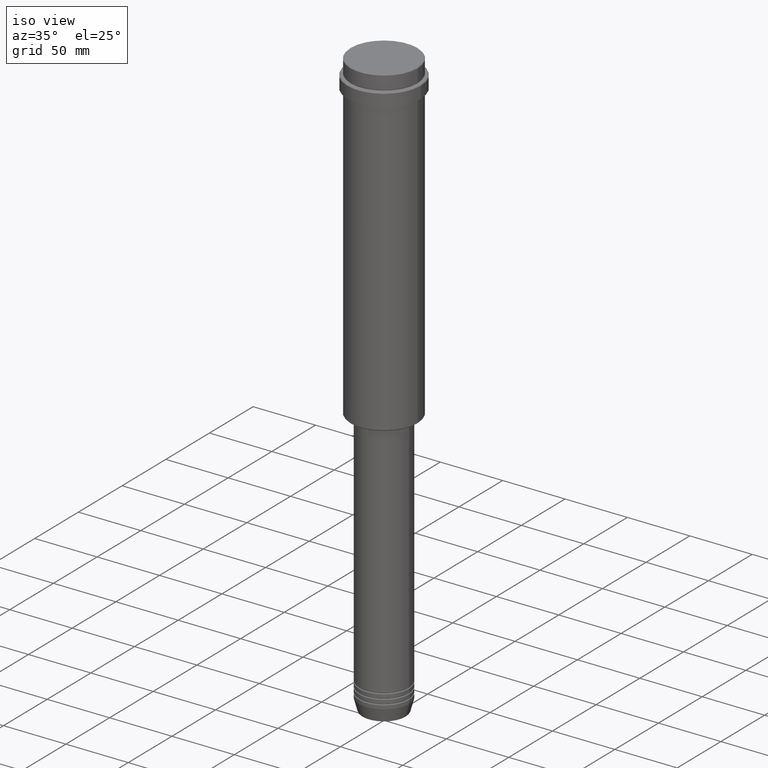
[diagram: clean part render]
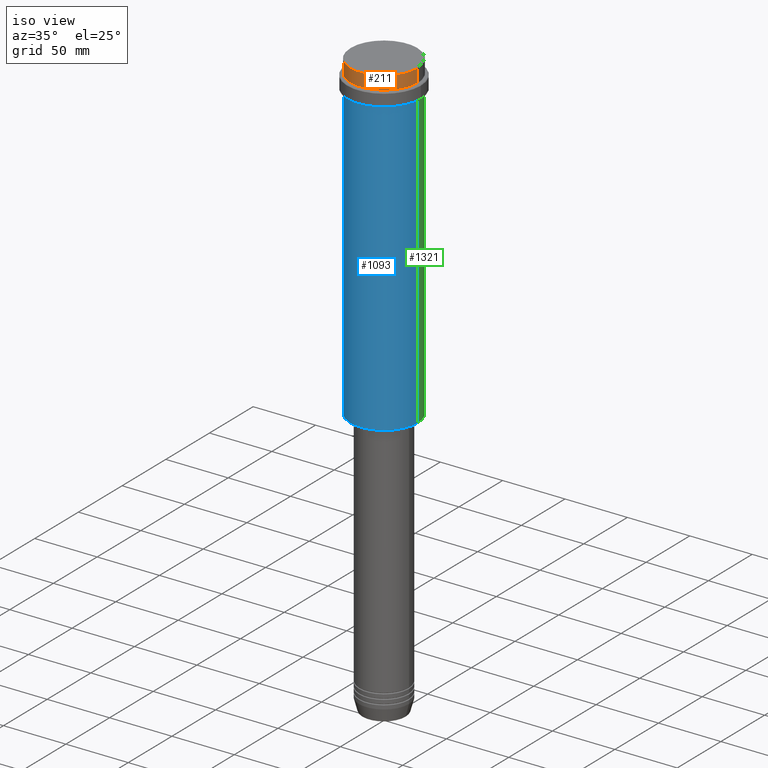
[diagram: same view with three faces highlighted in distinct colors, each labeled with its STEP entity id]
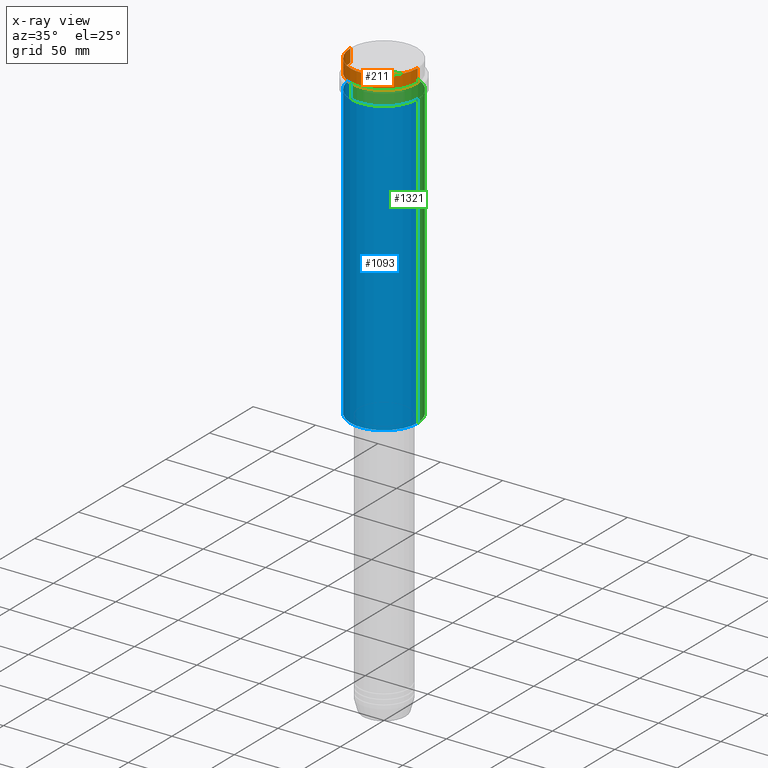
[diagram: x-ray of the same camera — body ghosted, the three highlighted faces saturated]
A machine part, iso view with three faces highlighted in distinct colors.
The next image is the same camera in x-ray (body ghosted, the three faces saturated) — at least one of them is partly hidden behind the body in this view.
Their STEP definitions:

[orange] entity #211 — the highlighted cylindrical surface (partial cylindrical patch) has radius 27 mm, axis along (-0, -0, 1).
#72 = DIRECTION ( 'NONE',  ( -0.000000000000000000, -0.000000000000000000, 1.000000000000000000 ) ) ;
#87 = DIRECTION ( 'NONE',  ( 1.000000000000000000, 0.000000000000000000, 0.000000000000000000 ) ) ;
#103 = CARTESIAN_POINT ( 'NONE',  ( 27.00000000000000355, 0.000000000000000000, 0.000000000000000000 ) ) ;
#125 = DIRECTION ( 'NONE',  ( -0.000000000000000000, -0.000000000000000000, 1.000000000000000000 ) ) ;
#166 = EDGE_CURVE ( 'NONE', #432, #493, #440, .T. ) ;
#207 = DIRECTION ( 'NONE',  ( -0.000000000000000000, -0.000000000000000000, 1.000000000000000000 ) ) ;
#211 = ADVANCED_FACE ( 'NONE', ( #609 ), #1039, .T. ) ;
#261 = AXIS2_PLACEMENT_3D ( 'NONE', #497, #72, #87 ) ;
#280 = ORIENTED_EDGE ( 'NONE', *, *, #166, .T. ) ;
#295 = DIRECTION ( 'NONE',  ( 0.000000000000000000, 0.000000000000000000, -1.000000000000000000 ) ) ;
#332 = VECTOR ( 'NONE', #207, 1000.000000000000000 ) ;
#341 = LINE ( 'NONE', #103, #332 ) ;
#404 = AXIS2_PLACEMENT_3D ( 'NONE', #519, #295, #1264 ) ;
#415 = EDGE_CURVE ( 'NONE', #432, #988, #865, .T. ) ;
#432 = VERTEX_POINT ( 'NONE', #958 ) ;
#440 = CIRCLE ( 'NONE', #1386, 27.00000000000000355 ) ;
#493 = VERTEX_POINT ( 'NONE', #766 ) ;
#497 = CARTESIAN_POINT ( 'NONE',  ( 0.000000000000000000, 0.000000000000000000, 0.000000000000000000 ) ) ;
#519 = CARTESIAN_POINT ( 'NONE',  ( 0.000000000000000000, 0.000000000000000000, -0.4999999999999241163 ) ) ;
#609 = FACE_OUTER_BOUND ( 'NONE', #1209, .T. ) ;
#713 = VECTOR ( 'NONE', #125, 1000.000000000000000 ) ;
#766 = CARTESIAN_POINT ( 'NONE',  ( 27.00000000000000355, 0.000000000000000000, -11.00000000000000178 ) ) ;
#823 = EDGE_CURVE ( 'NONE', #493, #974, #341, .T. ) ;
#865 = LINE ( 'NONE', #1083, #713 ) ;
#958 = CARTESIAN_POINT ( 'NONE',  ( -27.00000000000000355, 3.306546357697854128E-15, -11.00000000000000178 ) ) ;
#974 = VERTEX_POINT ( 'NONE', #1136 ) ;
#988 = VERTEX_POINT ( 'NONE', #1229 ) ;
#1011 = CARTESIAN_POINT ( 'NONE',  ( 0.000000000000000000, 0.000000000000000000, -11.00000000000000178 ) ) ;
#1039 = CYLINDRICAL_SURFACE ( 'NONE', #261, 27.00000000000000355 ) ;
#1083 = CARTESIAN_POINT ( 'NONE',  ( -27.00000000000000355, 3.306546357697854128E-15, 0.000000000000000000 ) ) ;
#1121 = DIRECTION ( 'NONE',  ( 1.000000000000000000, 0.000000000000000000, 0.000000000000000000 ) ) ;
#1136 = CARTESIAN_POINT ( 'NONE',  ( 27.00000000000000355, 0.000000000000000000, -0.4999999999999241163 ) ) ;
#1198 = ORIENTED_EDGE ( 'NONE', *, *, #1381, .T. ) ;
#1209 = EDGE_LOOP ( 'NONE', ( #1404, #280, #1235, #1198 ) ) ;
#1229 = CARTESIAN_POINT ( 'NONE',  ( -27.00000000000000355, 3.306546357697854128E-15, -0.4999999999999241163 ) ) ;
#1235 = ORIENTED_EDGE ( 'NONE', *, *, #823, .T. ) ;
#1252 = DIRECTION ( 'NONE',  ( -0.000000000000000000, -0.000000000000000000, 1.000000000000000000 ) ) ;
#1264 = DIRECTION ( 'NONE',  ( 1.000000000000000000, 0.000000000000000000, 0.000000000000000000 ) ) ;
#1381 = EDGE_CURVE ( 'NONE', #974, #988, #1412, .T. ) ;
#1386 = AXIS2_PLACEMENT_3D ( 'NONE', #1011, #1252, #1121 ) ;
#1404 = ORIENTED_EDGE ( 'NONE', *, *, #415, .F. ) ;
#1412 = CIRCLE ( 'NONE', #404, 27.00000000000000355 ) ;

[blue] entity #1093 — the highlighted cylindrical surface (partial cylindrical patch) has radius 27 mm, axis along (-0, -0, 1).
#9 = DIRECTION ( 'NONE',  ( -0.000000000000000000, -0.000000000000000000, 1.000000000000000000 ) ) ;
#15 = EDGE_CURVE ( 'NONE', #772, #1190, #1333, .T. ) ;
#20 = CARTESIAN_POINT ( 'NONE',  ( -27.00000000000000355, 3.306546357697854128E-15, 0.000000000000000000 ) ) ;
#39 = AXIS2_PLACEMENT_3D ( 'NONE', #583, #996, #483 ) ;
#63 = VERTEX_POINT ( 'NONE', #544 ) ;
#85 = CARTESIAN_POINT ( 'NONE',  ( -27.00000000000000355, 3.306546357697854128E-15, -23.00000000000001421 ) ) ;
#152 = DIRECTION ( 'NONE',  ( -0.000000000000000000, -0.000000000000000000, 1.000000000000000000 ) ) ;
#215 = DIRECTION ( 'NONE',  ( -0.000000000000000000, -0.000000000000000000, 1.000000000000000000 ) ) ;
#388 = CYLINDRICAL_SURFACE ( 'NONE', #782, 27.00000000000000355 ) ;
#429 = EDGE_CURVE ( 'NONE', #729, #772, #871, .T. ) ;
#464 = VECTOR ( 'NONE', #9, 1000.000000000000000 ) ;
#483 = DIRECTION ( 'NONE',  ( -1.000000000000000000, 0.000000000000000000, 0.000000000000000000 ) ) ;
#485 = AXIS2_PLACEMENT_3D ( 'NONE', #1334, #215, #1075 ) ;
#544 = CARTESIAN_POINT ( 'NONE',  ( 27.00000000000000355, 0.000000000000000000, -257.5000000000000000 ) ) ;
#583 = CARTESIAN_POINT ( 'NONE',  ( 0.000000000000000000, 0.000000000000000000, -257.5000000000000000 ) ) ;
#683 = CARTESIAN_POINT ( 'NONE',  ( 27.00000000000000355, 0.000000000000000000, 0.000000000000000000 ) ) ;
#690 = CIRCLE ( 'NONE', #39, 27.00000000000000355 ) ;
#709 = ORIENTED_EDGE ( 'NONE', *, *, #1064, .T. ) ;
#724 = DIRECTION ( 'NONE',  ( -0.000000000000000000, -0.000000000000000000, 1.000000000000000000 ) ) ;
#729 = VERTEX_POINT ( 'NONE', #743 ) ;
#743 = CARTESIAN_POINT ( 'NONE',  ( -27.00000000000000355, 3.306546357697854128E-15, -257.5000000000000000 ) ) ;
#772 = VERTEX_POINT ( 'NONE', #85 ) ;
#782 = AXIS2_PLACEMENT_3D ( 'NONE', #1162, #724, #1141 ) ;
#861 = ORIENTED_EDGE ( 'NONE', *, *, #429, .F. ) ;
#871 = LINE ( 'NONE', #20, #464 ) ;
#964 = ORIENTED_EDGE ( 'NONE', *, *, #15, .F. ) ;
#996 = DIRECTION ( 'NONE',  ( -0.000000000000000000, -0.000000000000000000, 1.000000000000000000 ) ) ;
#1037 = FACE_OUTER_BOUND ( 'NONE', #1045, .T. ) ;
#1045 = EDGE_LOOP ( 'NONE', ( #861, #1294, #709, #964 ) ) ;
#1064 = EDGE_CURVE ( 'NONE', #63, #1190, #1223, .T. ) ;
#1067 = EDGE_CURVE ( 'NONE', #729, #63, #690, .T. ) ;
#1075 = DIRECTION ( 'NONE',  ( 1.000000000000000000, 0.000000000000000000, 0.000000000000000000 ) ) ;
#1093 = ADVANCED_FACE ( 'NONE', ( #1037 ), #388, .T. ) ;
#1141 = DIRECTION ( 'NONE',  ( 1.000000000000000000, 0.000000000000000000, 0.000000000000000000 ) ) ;
#1162 = CARTESIAN_POINT ( 'NONE',  ( 0.000000000000000000, 0.000000000000000000, 0.000000000000000000 ) ) ;
#1190 = VERTEX_POINT ( 'NONE', #1396 ) ;
#1222 = VECTOR ( 'NONE', #152, 1000.000000000000000 ) ;
#1223 = LINE ( 'NONE', #683, #1222 ) ;
#1294 = ORIENTED_EDGE ( 'NONE', *, *, #1067, .T. ) ;
#1333 = CIRCLE ( 'NONE', #485, 27.00000000000000355 ) ;
#1334 = CARTESIAN_POINT ( 'NONE',  ( 0.000000000000000000, 0.000000000000000000, -23.00000000000001421 ) ) ;
#1396 = CARTESIAN_POINT ( 'NONE',  ( 27.00000000000000355, 0.000000000000000000, -23.00000000000001421 ) ) ;

[green] entity #1321 — the highlighted cylindrical surface (partial cylindrical patch) has radius 27 mm, axis along (-0, -0, 1).
#9 = DIRECTION ( 'NONE',  ( -0.000000000000000000, -0.000000000000000000, 1.000000000000000000 ) ) ;
#20 = CARTESIAN_POINT ( 'NONE',  ( -27.00000000000000355, 3.306546357697854128E-15, 0.000000000000000000 ) ) ;
#31 = ORIENTED_EDGE ( 'NONE', *, *, #723, .F. ) ;
#63 = VERTEX_POINT ( 'NONE', #544 ) ;
#85 = CARTESIAN_POINT ( 'NONE',  ( -27.00000000000000355, 3.306546357697854128E-15, -23.00000000000001421 ) ) ;
#86 = CIRCLE ( 'NONE', #899, 27.00000000000000355 ) ;
#102 = EDGE_CURVE ( 'NONE', #63, #729, #874, .T. ) ;
#152 = DIRECTION ( 'NONE',  ( -0.000000000000000000, -0.000000000000000000, 1.000000000000000000 ) ) ;
#307 = ORIENTED_EDGE ( 'NONE', *, *, #102, .T. ) ;
#369 = DIRECTION ( 'NONE',  ( 1.000000000000000000, 0.000000000000000000, 0.000000000000000000 ) ) ;
#429 = EDGE_CURVE ( 'NONE', #729, #772, #871, .T. ) ;
#464 = VECTOR ( 'NONE', #9, 1000.000000000000000 ) ;
#481 = FACE_OUTER_BOUND ( 'NONE', #545, .T. ) ;
#515 = ORIENTED_EDGE ( 'NONE', *, *, #1064, .F. ) ;
#544 = CARTESIAN_POINT ( 'NONE',  ( 27.00000000000000355, 0.000000000000000000, -257.5000000000000000 ) ) ;
#545 = EDGE_LOOP ( 'NONE', ( #307, #602, #31, #515 ) ) ;
#598 = AXIS2_PLACEMENT_3D ( 'NONE', #1241, #928, #1115 ) ;
#602 = ORIENTED_EDGE ( 'NONE', *, *, #429, .T. ) ;
#683 = CARTESIAN_POINT ( 'NONE',  ( 27.00000000000000355, 0.000000000000000000, 0.000000000000000000 ) ) ;
#710 = CARTESIAN_POINT ( 'NONE',  ( 0.000000000000000000, 0.000000000000000000, -23.00000000000001421 ) ) ;
#723 = EDGE_CURVE ( 'NONE', #1190, #772, #86, .T. ) ;
#729 = VERTEX_POINT ( 'NONE', #743 ) ;
#743 = CARTESIAN_POINT ( 'NONE',  ( -27.00000000000000355, 3.306546357697854128E-15, -257.5000000000000000 ) ) ;
#772 = VERTEX_POINT ( 'NONE', #85 ) ;
#827 = DIRECTION ( 'NONE',  ( 1.000000000000000000, 0.000000000000000000, 0.000000000000000000 ) ) ;
#871 = LINE ( 'NONE', #20, #464 ) ;
#874 = CIRCLE ( 'NONE', #598, 27.00000000000000355 ) ;
#899 = AXIS2_PLACEMENT_3D ( 'NONE', #710, #1031, #827 ) ;
#906 = CYLINDRICAL_SURFACE ( 'NONE', #1201, 27.00000000000000355 ) ;
#928 = DIRECTION ( 'NONE',  ( -0.000000000000000000, -0.000000000000000000, 1.000000000000000000 ) ) ;
#993 = DIRECTION ( 'NONE',  ( -0.000000000000000000, -0.000000000000000000, 1.000000000000000000 ) ) ;
#1031 = DIRECTION ( 'NONE',  ( -0.000000000000000000, -0.000000000000000000, 1.000000000000000000 ) ) ;
#1064 = EDGE_CURVE ( 'NONE', #63, #1190, #1223, .T. ) ;
#1115 = DIRECTION ( 'NONE',  ( -1.000000000000000000, 0.000000000000000000, 0.000000000000000000 ) ) ;
#1190 = VERTEX_POINT ( 'NONE', #1396 ) ;
#1201 = AXIS2_PLACEMENT_3D ( 'NONE', #1351, #993, #369 ) ;
#1222 = VECTOR ( 'NONE', #152, 1000.000000000000000 ) ;
#1223 = LINE ( 'NONE', #683, #1222 ) ;
#1241 = CARTESIAN_POINT ( 'NONE',  ( 0.000000000000000000, 0.000000000000000000, -257.5000000000000000 ) ) ;
#1321 = ADVANCED_FACE ( 'NONE', ( #481 ), #906, .T. ) ;
#1351 = CARTESIAN_POINT ( 'NONE',  ( 0.000000000000000000, 0.000000000000000000, 0.000000000000000000 ) ) ;
#1396 = CARTESIAN_POINT ( 'NONE',  ( 27.00000000000000355, 0.000000000000000000, -23.00000000000001421 ) ) ;